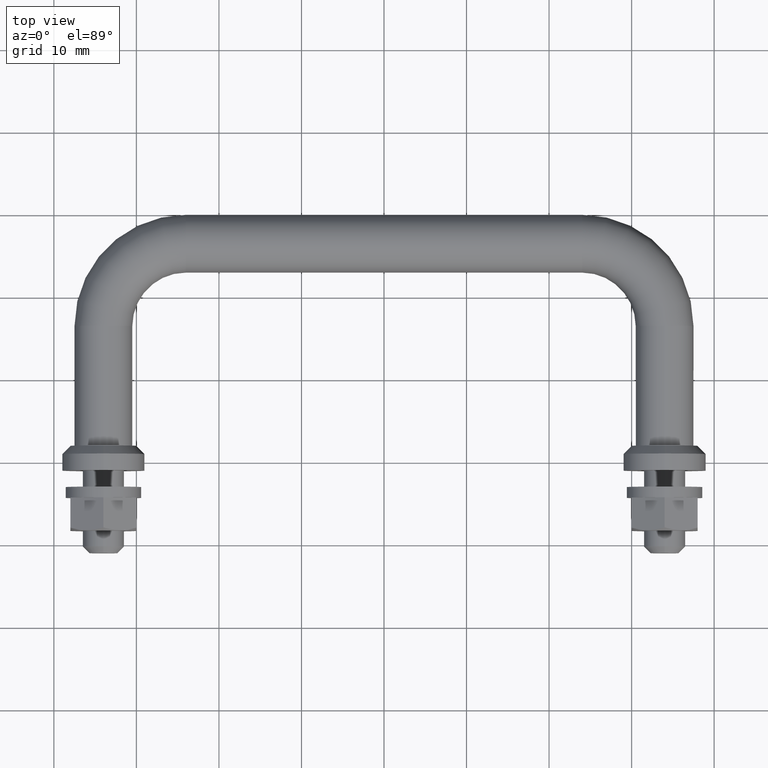
[diagram: clean part render]
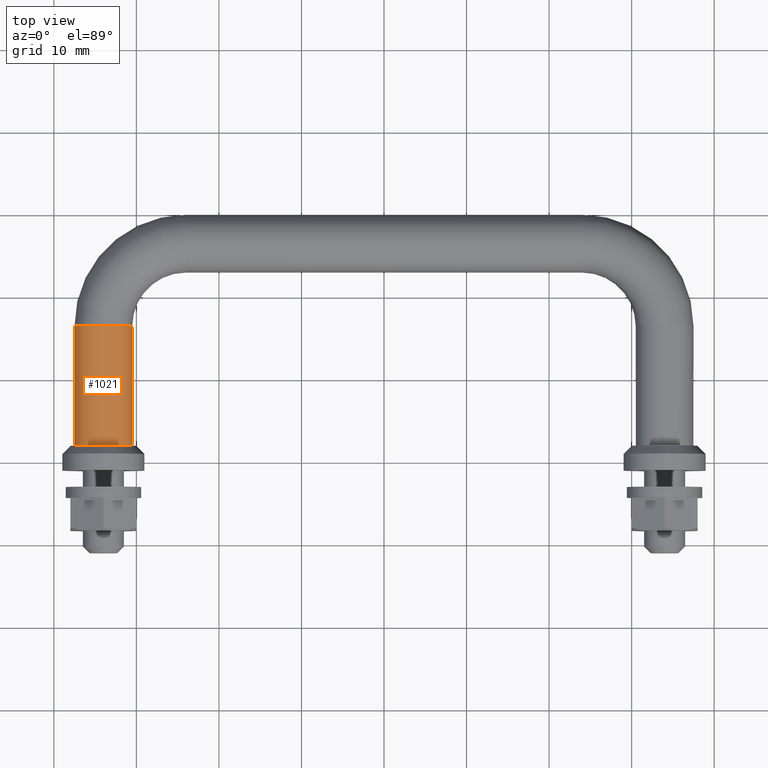
[diagram: same view with one face highlighted and labeled with its STEP entity id]
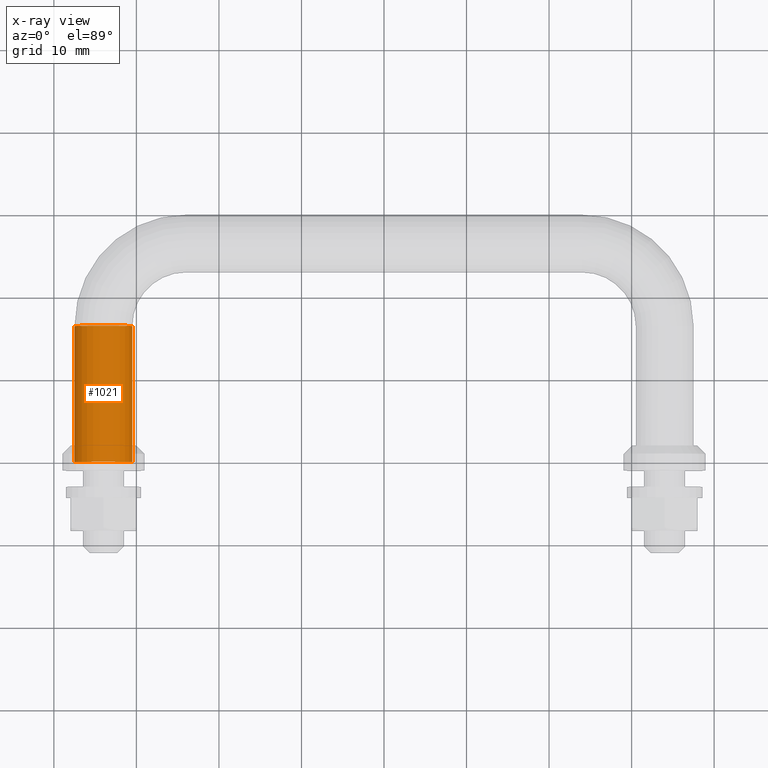
[diagram: x-ray of the same camera — body ghosted, the highlighted face saturated]
A machine part, top view. The second image highlights one B-rep face of the part: STEP entity #1021.
The next image is the same camera in x-ray: the body ghosted, the highlighted face saturated — about 0% of this face is hidden behind the body in this view.
In plain terms, the highlighted cylindrical surface (edge-blend (fillet) strip) has radius 3.5 mm, axis along (0, -1, 0).
Its self-contained STEP definition (entity closure, byte-faithful):
#8 = CARTESIAN_POINT ( 'NONE',  ( -30.50000000000000400, 16.50000000000001100, 0.0000000000000000000 ) ) ;
#40 = LINE ( 'NONE', #479, #1778 ) ;
#77 = LINE ( 'NONE', #1597, #1529 ) ;
#82 = ORIENTED_EDGE ( 'NONE', *, *, #340, .F. ) ;
#137 = VERTEX_POINT ( 'NONE', #8 ) ;
#161 = CYLINDRICAL_SURFACE ( 'NONE', #210, 3.499999999999999600 ) ;
#204 = VERTEX_POINT ( 'NONE', #1128 ) ;
#210 = AXIS2_PLACEMENT_3D ( 'NONE', #1001, #1574, #736 ) ;
#309 = VERTEX_POINT ( 'NONE', #433 ) ;
#328 = DIRECTION ( 'NONE',  ( 4.205390244792256900E-016, -1.000000000000000000, -0.0000000000000000000 ) ) ;
#340 = EDGE_CURVE ( 'NONE', #204, #137, #1545, .T. ) ;
#347 = AXIS2_PLACEMENT_3D ( 'NONE', #609, #1754, #1605 ) ;
#433 = CARTESIAN_POINT ( 'NONE',  ( -37.50000000000000000, 0.0000000000000000000, 4.286263797015732700E-016 ) ) ;
#446 = DIRECTION ( 'NONE',  ( 4.205390244792256900E-016, -1.000000000000000000, -0.0000000000000000000 ) ) ;
#448 = DIRECTION ( 'NONE',  ( 0.0000000000000000000, 0.0000000000000000000, 1.000000000000000000 ) ) ;
#479 = CARTESIAN_POINT ( 'NONE',  ( -30.50000000000000400, 16.50000000000001100, 0.0000000000000000000 ) ) ;
#512 = FACE_OUTER_BOUND ( 'NONE', #1650, .T. ) ;
#540 = EDGE_CURVE ( 'NONE', #309, #1018, #1693, .T. ) ;
#580 = EDGE_CURVE ( 'NONE', #204, #309, #77, .T. ) ;
#609 = CARTESIAN_POINT ( 'NONE',  ( -33.99999999999999300, 0.0000000000000000000, 0.0000000000000000000 ) ) ;
#707 = CARTESIAN_POINT ( 'NONE',  ( -30.49999999999999600, 0.0000000000000000000, 0.0000000000000000000 ) ) ;
#736 = DIRECTION ( 'NONE',  ( 1.000000000000000000, 0.0000000000000000000, 0.0000000000000000000 ) ) ;
#1001 = CARTESIAN_POINT ( 'NONE',  ( -34.00000000000000000, 16.50000000000001100, 0.0000000000000000000 ) ) ;
#1018 = VERTEX_POINT ( 'NONE', #707 ) ;
#1021 = ADVANCED_FACE ( 'NONE', ( #512 ), #161, .T. ) ;
#1128 = CARTESIAN_POINT ( 'NONE',  ( -37.50000000000000700, 16.50000000000001100, 4.286263797015732700E-016 ) ) ;
#1182 = CARTESIAN_POINT ( 'NONE',  ( -34.00000000000000000, 16.50000000000001100, 0.0000000000000000000 ) ) ;
#1237 = ORIENTED_EDGE ( 'NONE', *, *, #540, .T. ) ;
#1247 = EDGE_CURVE ( 'NONE', #137, #1018, #40, .T. ) ;
#1315 = DIRECTION ( 'NONE',  ( 0.0000000000000000000, 1.000000000000000000, 0.0000000000000000000 ) ) ;
#1427 = ORIENTED_EDGE ( 'NONE', *, *, #1247, .F. ) ;
#1529 = VECTOR ( 'NONE', #328, 1000.000000000000000 ) ;
#1545 = CIRCLE ( 'NONE', #1608, 3.500000000000000000 ) ;
#1574 = DIRECTION ( 'NONE',  ( 4.205390244792256900E-016, -1.000000000000000000, -0.0000000000000000000 ) ) ;
#1597 = CARTESIAN_POINT ( 'NONE',  ( -37.50000000000000700, 16.50000000000001100, 4.286263797015736600E-016 ) ) ;
#1605 = DIRECTION ( 'NONE',  ( 0.0000000000000000000, 0.0000000000000000000, 1.000000000000000000 ) ) ;
#1608 = AXIS2_PLACEMENT_3D ( 'NONE', #1182, #1315, #448 ) ;
#1650 = EDGE_LOOP ( 'NONE', ( #82, #1790, #1237, #1427 ) ) ;
#1693 = CIRCLE ( 'NONE', #347, 3.500000000000000000 ) ;
#1754 = DIRECTION ( 'NONE',  ( 0.0000000000000000000, 1.000000000000000000, 0.0000000000000000000 ) ) ;
#1778 = VECTOR ( 'NONE', #446, 1000.000000000000000 ) ;
#1790 = ORIENTED_EDGE ( 'NONE', *, *, #580, .T. ) ;